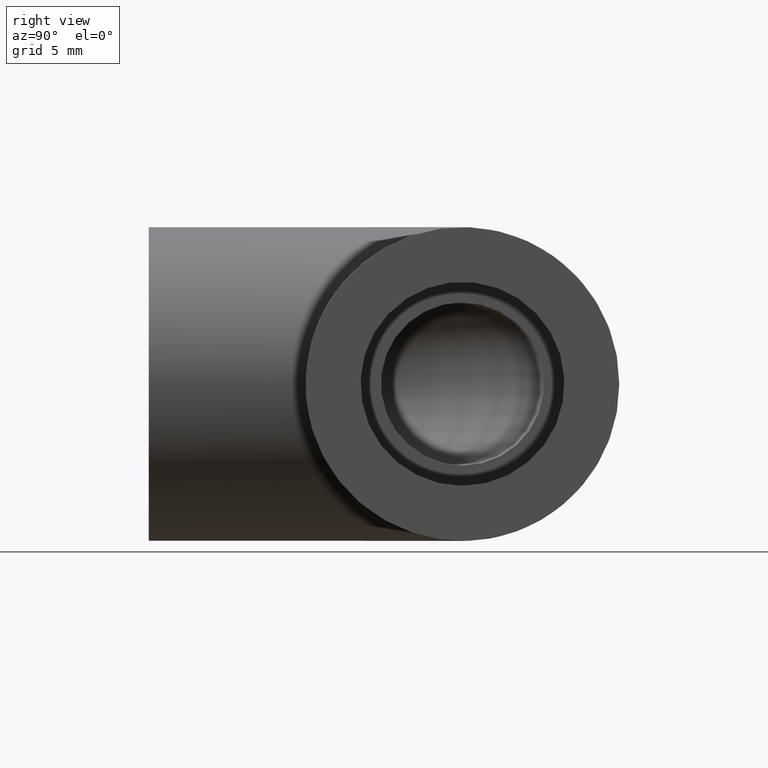
[diagram: clean part render]
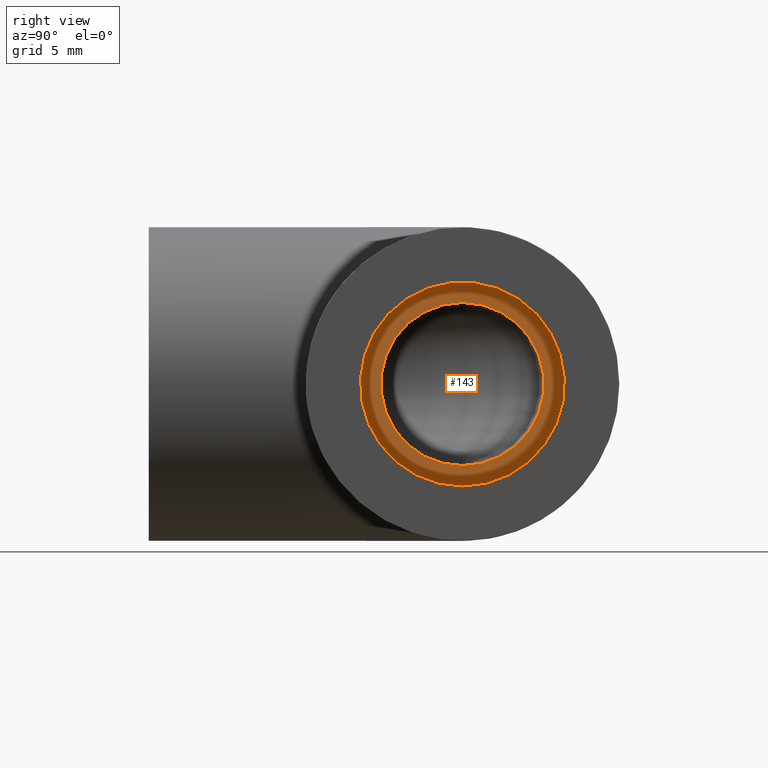
[diagram: same view with one face highlighted and labeled with its STEP entity id]
A machine part, right view. The second image highlights one B-rep face of the part: STEP entity #143.
In plain terms, the highlighted planar face has unit normal (1, 0, 0).
Its self-contained STEP definition (entity closure, byte-faithful):
#18=PLANE('',#165);
#28=FACE_BOUND('',#58,.T.);
#39=FACE_OUTER_BOUND('',#57,.T.);
#57=EDGE_LOOP('',(#117));
#58=EDGE_LOOP('',(#118));
#71=CIRCLE('',#157,5.98);
#74=CIRCLE('',#163,7.475);
#83=VERTEX_POINT('',#238);
#86=VERTEX_POINT('',#247);
#95=EDGE_CURVE('',#83,#83,#71,.T.);
#98=EDGE_CURVE('',#86,#86,#74,.T.);
#117=ORIENTED_EDGE('',*,*,#98,.F.);
#118=ORIENTED_EDGE('',*,*,#95,.T.);
#143=ADVANCED_FACE('',(#39,#28),#18,.T.);
#157=AXIS2_PLACEMENT_3D('',#239,#190,#191);
#163=AXIS2_PLACEMENT_3D('',#248,#202,#203);
#165=AXIS2_PLACEMENT_3D('',#251,#206,#207);
#190=DIRECTION('center_axis',(-1.,0.,0.));
#191=DIRECTION('ref_axis',(0.,0.,1.));
#202=DIRECTION('center_axis',(-1.,0.,0.));
#203=DIRECTION('ref_axis',(0.,0.,1.));
#206=DIRECTION('center_axis',(1.,0.,0.));
#207=DIRECTION('ref_axis',(0.,0.,-1.));
#238=CARTESIAN_POINT('',(9.5,7.32338785890117E-16,-5.98));
#239=CARTESIAN_POINT('Origin',(9.5,1.61808345976352E-51,0.));
#247=CARTESIAN_POINT('',(9.5,9.15423482362646E-16,-7.475));
#248=CARTESIAN_POINT('Origin',(9.5,0.,0.));
#251=CARTESIAN_POINT('Origin',(9.5,1.23770682789873E-16,3.23826655776632E-16));